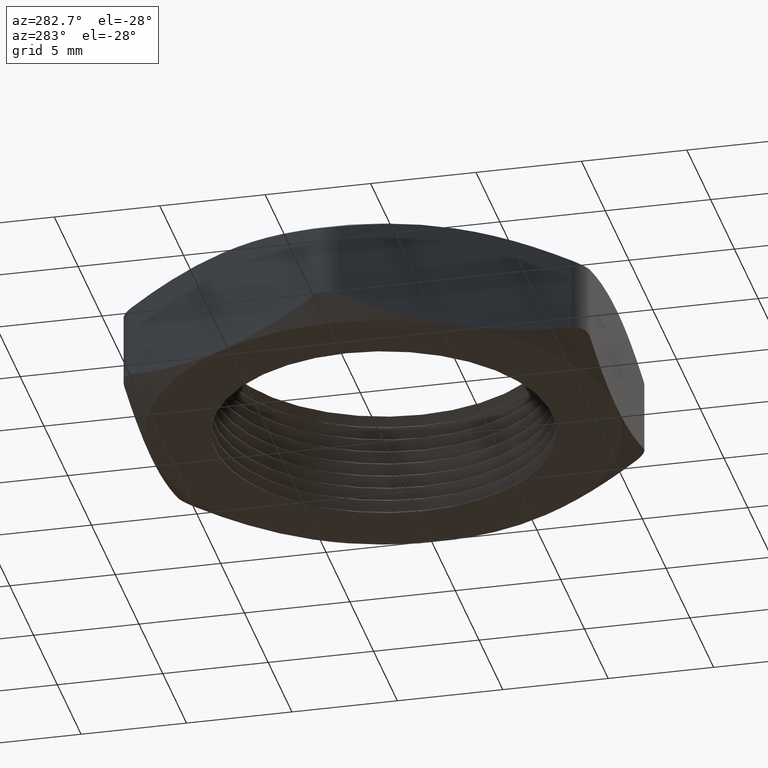
[diagram: clean part render]
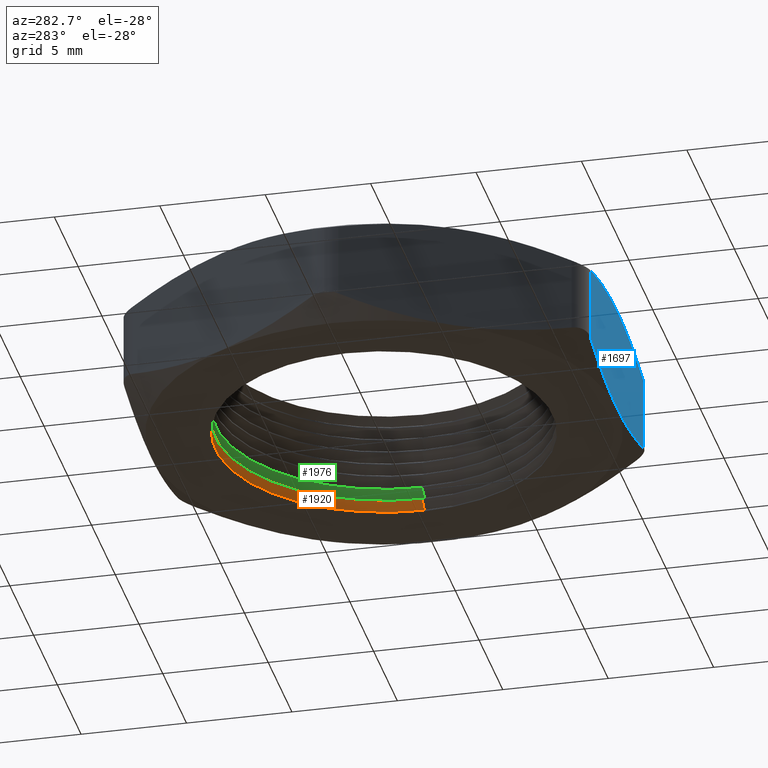
[diagram: same view with three faces highlighted in distinct colors, each labeled with its STEP entity id]
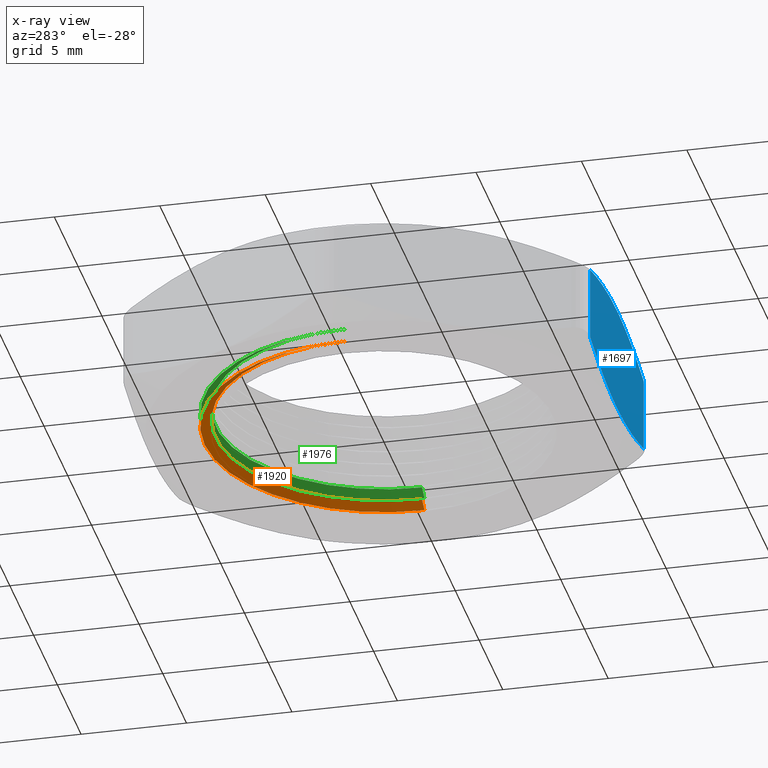
[diagram: x-ray of the same camera — body ghosted, the three highlighted faces saturated]
A machine part, auxiliary view with three faces highlighted in distinct colors.
The next image is the same camera in x-ray (body ghosted, the three faces saturated) — at least one of them is partly hidden behind the body in this view.
Their STEP definitions:

[orange] entity #1920 — the highlighted conical surface has half-angle 60 deg.
#8 = DIRECTION ( 'NONE',  ( 0.0000000000000000000, 0.0000000000000000000, -1.000000000000000000 ) ) ;
#11 = DIRECTION ( 'NONE',  ( -1.000000000000000000, 0.0000000000000000000, 0.0000000000000000000 ) ) ;
#347 = CARTESIAN_POINT ( 'NONE',  ( 0.0000000000000000000, 0.0000000000000000000, 0.01345299461620779400 ) ) ;
#348 = AXIS2_PLACEMENT_3D ( 'NONE', #347, #8, #11 ) ;
#349 = CONICAL_SURFACE ( 'NONE', #348, 0.3349999999999999600, 1.047197551196609000 ) ;
#354 = FACE_OUTER_BOUND ( 'NONE', #1921, .T. ) ;
#410 = CIRCLE ( 'NONE', #426, 0.3349999999999999600 ) ;
#423 = DIRECTION ( 'NONE',  ( 1.000000000000000000, 0.0000000000000000000, 0.0000000000000000000 ) ) ;
#424 = DIRECTION ( 'NONE',  ( 0.0000000000000000000, 0.0000000000000000000, 1.000000000000000000 ) ) ;
#425 = CARTESIAN_POINT ( 'NONE',  ( 0.0000000000000000000, 0.0000000000000000000, 0.01345299461620779400 ) ) ;
#426 = AXIS2_PLACEMENT_3D ( 'NONE', #425, #424, #423 ) ;
#868 = CARTESIAN_POINT ( 'NONE',  ( 0.0000000000000000000, 0.0000000000000000000, 0.02500000000000000500 ) ) ;
#909 = DIRECTION ( 'NONE',  ( 1.000000000000000000, 0.0000000000000000000, 0.0000000000000000000 ) ) ;
#910 = DIRECTION ( 'NONE',  ( 0.0000000000000000000, 0.0000000000000000000, 1.000000000000000000 ) ) ;
#911 = AXIS2_PLACEMENT_3D ( 'NONE', #868, #910, #909 ) ;
#912 = CIRCLE ( 'NONE', #911, 0.3150000000000000000 ) ;
#995 = CARTESIAN_POINT ( 'NONE',  ( 0.3349999999999999600, 4.102566777143632800E-017, 0.01345299461620779400 ) ) ;
#1261 = EDGE_CURVE ( 'NONE', #1380, #1390, #2023, .T. ) ;
#1266 = EDGE_CURVE ( 'NONE', #1381, #1409, #2060, .T. ) ;
#1380 = VERTEX_POINT ( 'NONE', #2269 ) ;
#1381 = VERTEX_POINT ( 'NONE', #2286 ) ;
#1390 = VERTEX_POINT ( 'NONE', #2289 ) ;
#1409 = VERTEX_POINT ( 'NONE', #995 ) ;
#1562 = EDGE_CURVE ( 'NONE', #1381, #1380, #912, .T. ) ;
#1920 = ADVANCED_FACE ( 'NONE', ( #354 ), #349, .F. ) ;
#1921 = EDGE_LOOP ( 'NONE', ( #1922, #2065, #2066, #1960 ) ) ;
#1922 = ORIENTED_EDGE ( 'NONE', *, *, #1266, .F. ) ;
#1960 = ORIENTED_EDGE ( 'NONE', *, *, #1961, .F. ) ;
#1961 = EDGE_CURVE ( 'NONE', #1409, #1390, #410, .T. ) ;
#2020 = DIRECTION ( 'NONE',  ( -0.8660254037844441500, 0.0000000000000000000, -0.4999999999999902300 ) ) ;
#2021 = VECTOR ( 'NONE', #2020, 39.37007874015748100 ) ;
#2022 = CARTESIAN_POINT ( 'NONE',  ( -0.3349999999999999600, 0.0000000000000000000, 0.01345299461620779400 ) ) ;
#2023 = LINE ( 'NONE', #2022, #2021 ) ;
#2057 = DIRECTION ( 'NONE',  ( 0.8660254037844441500, 1.060575238724913900E-016, -0.4999999999999902300 ) ) ;
#2058 = VECTOR ( 'NONE', #2057, 39.37007874015748100 ) ;
#2059 = CARTESIAN_POINT ( 'NONE',  ( 0.3349999999999999600, 4.102566777143632800E-017, 0.01345299461620779400 ) ) ;
#2060 = LINE ( 'NONE', #2059, #2058 ) ;
#2065 = ORIENTED_EDGE ( 'NONE', *, *, #1562, .T. ) ;
#2066 = ORIENTED_EDGE ( 'NONE', *, *, #1261, .T. ) ;
#2269 = CARTESIAN_POINT ( 'NONE',  ( -0.3150000000000000000, 0.0000000000000000000, 0.02500000000000000500 ) ) ;
#2286 = CARTESIAN_POINT ( 'NONE',  ( 0.3150000000000000000, 3.857637417314162700E-017, 0.02500000000000000500 ) ) ;
#2289 = CARTESIAN_POINT ( 'NONE',  ( -0.3349999999999999600, 0.0000000000000000000, 0.01345299461620779400 ) ) ;

[blue] entity #1697 — the highlighted planar face has unit normal (-0, 1, 0).
#7 = FACE_OUTER_BOUND ( 'NONE', #1854, .T. ) ;
#12 = AXIS2_PLACEMENT_3D ( 'NONE', #18, #15, #14 ) ;
#13 = PLANE ( 'NONE',  #12 ) ;
#14 = DIRECTION ( 'NONE',  ( -1.000000000000000000, -1.359683771144138300E-016, 0.0000000000000000000 ) ) ;
#15 = DIRECTION ( 'NONE',  ( -1.359683771144138300E-016, 1.000000000000000000, 0.0000000000000000000 ) ) ;
#18 = CARTESIAN_POINT ( 'NONE',  ( -0.2511473670974874700, -0.4349999999999998900, 0.2000000000000000100 ) ) ;
#25 = B_SPLINE_CURVE_WITH_KNOTS ( 'NONE', 3,
 ( #44, #43, #42, #41, #40, #39 ),
 .UNSPECIFIED., .F., .F.,
 ( 4, 2, 4 ),
 ( 0.01847875069203570500, 0.02132960203524542800, 0.02418045337845514700 ),
 .UNSPECIFIED. ) ;
#26 = CARTESIAN_POINT ( 'NONE',  ( 0.2222798536380059800, -0.4349999999999997800, 0.1691111204119871100 ) ) ;
#27 = DIRECTION ( 'NONE',  ( 0.0000000000000000000, 0.0000000000000000000, 1.000000000000000000 ) ) ;
#28 = VECTOR ( 'NONE', #27, 39.37007874015748100 ) ;
#29 = CARTESIAN_POINT ( 'NONE',  ( 0.2222798536380060100, -0.4349999999999997800, 0.2000000000000000100 ) ) ;
#30 = CARTESIAN_POINT ( 'NONE',  ( 5.914624404477002600E-017, -0.4350000000000000500, 0.0000000000000000000 ) ) ;
#31 = CARTESIAN_POINT ( 'NONE',  ( 0.03753014323917940000, -0.4349999999999998900, -1.376595278057382700E-016 ) ) ;
#32 = CARTESIAN_POINT ( 'NONE',  ( 0.07552621429141961900, -0.4349999999999997800, 0.002912365759522471100 ) ) ;
#33 = CARTESIAN_POINT ( 'NONE',  ( 0.1497328604316976500, -0.4349999999999997800, 0.01365115003455797000 ) ) ;
#34 = CARTESIAN_POINT ( 'NONE',  ( 0.1862242521620562400, -0.4349999999999997200, 0.02141677105221277300 ) ) ;
#35 = CARTESIAN_POINT ( 'NONE',  ( 0.2222798536380059800, -0.4349999999999997800, 0.03088887958801292400 ) ) ;
#36 = LINE ( 'NONE', #29, #28 ) ;
#37 = B_SPLINE_CURVE_WITH_KNOTS ( 'NONE', 3,
 ( #58, #57, #56, #55, #54, #53, #52, #51 ),
 .UNSPECIFIED., .F., .F.,
 ( 4, 2, 2, 4 ),
 ( 0.01277533380509475500, 0.01420118802682999300, 0.01562704224856523200, 0.01847875069203570500 ),
 .UNSPECIFIED. ) ;
#38 = CARTESIAN_POINT ( 'NONE',  ( -0.2222798536380077000, -0.4349999999999998900, 0.1691111204119867000 ) ) ;
#39 = CARTESIAN_POINT ( 'NONE',  ( 0.2222798536380059800, -0.4349999999999997800, 0.1691111204119871100 ) ) ;
#40 = CARTESIAN_POINT ( 'NONE',  ( 0.1862242521620564000, -0.4349999999999998900, 0.1785832289477872800 ) ) ;
#41 = CARTESIAN_POINT ( 'NONE',  ( 0.1497328604316978100, -0.4349999999999997800, 0.1863488499654419900 ) ) ;
#42 = CARTESIAN_POINT ( 'NONE',  ( 0.07552621429141979900, -0.4349999999999997800, 0.1970876342404775900 ) ) ;
#43 = CARTESIAN_POINT ( 'NONE',  ( 0.03753014323917938000, -0.4349999999999997200, 0.2000000000000000900 ) ) ;
#44 = CARTESIAN_POINT ( 'NONE',  ( 5.914624404476998900E-017, -0.4349999999999997800, 0.2000000000000000100 ) ) ;
#45 = CARTESIAN_POINT ( 'NONE',  ( 5.914624404476998900E-017, -0.4349999999999997800, 0.2000000000000000100 ) ) ;
#46 = B_SPLINE_CURVE_WITH_KNOTS ( 'NONE', 3,
 ( #35, #34, #33, #32, #31, #30 ),
 .UNSPECIFIED., .F., .F.,
 ( 4, 2, 4 ),
 ( 0.03248670147795788800, 0.03533643441563486000, 0.03818616735331182400 ),
 .UNSPECIFIED. ) ;
#47 = CARTESIAN_POINT ( 'NONE',  ( 0.2222798536380059800, -0.4349999999999997800, 0.03088887958801292400 ) ) ;
#48 = CARTESIAN_POINT ( 'NONE',  ( 5.914624404477002600E-017, -0.4350000000000000500, 0.0000000000000000000 ) ) ;
#51 = CARTESIAN_POINT ( 'NONE',  ( 5.914624404476998900E-017, -0.4349999999999997800, 0.2000000000000000100 ) ) ;
#52 = CARTESIAN_POINT ( 'NONE',  ( -0.03754142656885312700, -0.4349999999999998900, 0.2000000000000001800 ) ) ;
#53 = CARTESIAN_POINT ( 'NONE',  ( -0.07481306858774536300, -0.4350000000000000000, 0.1971556570366345700 ) ) ;
#54 = CARTESIAN_POINT ( 'NONE',  ( -0.1303676137523879800, -0.4349999999999999400, 0.1891683237292946000 ) ) ;
#55 = CARTESIAN_POINT ( 'NONE',  ( -0.1488276767562097500, -0.4349999999999998900, 0.1858931326932102600 ) ) ;
#56 = CARTESIAN_POINT ( 'NONE',  ( -0.1856455972818110700, -0.4349999999999999400, 0.1782651965368422500 ) ) ;
#57 = CARTESIAN_POINT ( 'NONE',  ( -0.2040460030624152400, -0.4350000000000000000, 0.1739013056982530400 ) ) ;
#58 = CARTESIAN_POINT ( 'NONE',  ( -0.2222798536380077000, -0.4349999999999998900, 0.1691111204119867000 ) ) ;
#1037 = CARTESIAN_POINT ( 'NONE',  ( -0.2222798536380077000, -0.4349999999999998900, 0.03088887958801332000 ) ) ;
#1038 = DIRECTION ( 'NONE',  ( 0.0000000000000000000, 0.0000000000000000000, -1.000000000000000000 ) ) ;
#1039 = VECTOR ( 'NONE', #1038, 39.37007874015748100 ) ;
#1040 = CARTESIAN_POINT ( 'NONE',  ( -0.2222798536380061500, -0.4349999999999998900, 0.2000000000000000100 ) ) ;
#1049 = LINE ( 'NONE', #1040, #1039 ) ;
#1089 = CARTESIAN_POINT ( 'NONE',  ( -0.2222798536380077000, -0.4349999999999998900, 0.03088887958801332000 ) ) ;
#1090 = CARTESIAN_POINT ( 'NONE',  ( -0.2040460030624153300, -0.4349999999999998900, 0.02609869430174703200 ) ) ;
#1091 = CARTESIAN_POINT ( 'NONE',  ( -0.1856455972818111800, -0.4349999999999999400, 0.02173480346315777300 ) ) ;
#1092 = CARTESIAN_POINT ( 'NONE',  ( -0.1488276767562098100, -0.4349999999999999400, 0.01410686730678978100 ) ) ;
#1093 = CARTESIAN_POINT ( 'NONE',  ( -0.1303676137523880100, -0.4349999999999998900, 0.01083167627070547200 ) ) ;
#1094 = CARTESIAN_POINT ( 'NONE',  ( -0.07481306858774536300, -0.4349999999999998900, 0.002844342963365523300 ) ) ;
#1109 = CARTESIAN_POINT ( 'NONE',  ( -0.03754142656885309900, -0.4349999999999999400, -1.380152371799133400E-016 ) ) ;
#1110 = CARTESIAN_POINT ( 'NONE',  ( 5.914624404477002600E-017, -0.4350000000000000500, 0.0000000000000000000 ) ) ;
#1114 = B_SPLINE_CURVE_WITH_KNOTS ( 'NONE', 3,
 ( #1110, #1109, #1094, #1093, #1092, #1091, #1090, #1089 ),
 .UNSPECIFIED., .F., .F.,
 ( 4, 2, 2, 4 ),
 ( 0.03818616735331182400, 0.04103675705500414000, 0.04246205190585029800, 0.04388734675669645600 ),
 .UNSPECIFIED. ) ;
#1635 = ORIENTED_EDGE ( 'NONE', *, *, #1636, .T. ) ;
#1636 = EDGE_CURVE ( 'NONE', #1711, #1637, #1049, .T. ) ;
#1637 = VERTEX_POINT ( 'NONE', #1037 ) ;
#1638 = ORIENTED_EDGE ( 'NONE', *, *, #1639, .F. ) ;
#1639 = EDGE_CURVE ( 'NONE', #1702, #1637, #1114, .T. ) ;
#1697 = ADVANCED_FACE ( 'NONE', ( #7 ), #13, .F. ) ;
#1698 = ORIENTED_EDGE ( 'NONE', *, *, #1700, .F. ) ;
#1700 = EDGE_CURVE ( 'NONE', #1701, #1702, #46, .T. ) ;
#1701 = VERTEX_POINT ( 'NONE', #47 ) ;
#1702 = VERTEX_POINT ( 'NONE', #48 ) ;
#1703 = ORIENTED_EDGE ( 'NONE', *, *, #1704, .T. ) ;
#1704 = EDGE_CURVE ( 'NONE', #1701, #1705, #36, .T. ) ;
#1705 = VERTEX_POINT ( 'NONE', #26 ) ;
#1706 = ORIENTED_EDGE ( 'NONE', *, *, #1707, .F. ) ;
#1707 = EDGE_CURVE ( 'NONE', #1708, #1705, #25, .T. ) ;
#1708 = VERTEX_POINT ( 'NONE', #45 ) ;
#1709 = ORIENTED_EDGE ( 'NONE', *, *, #1710, .F. ) ;
#1710 = EDGE_CURVE ( 'NONE', #1711, #1708, #37, .T. ) ;
#1711 = VERTEX_POINT ( 'NONE', #38 ) ;
#1854 = EDGE_LOOP ( 'NONE', ( #1698, #1703, #1706, #1709, #1635, #1638 ) ) ;

[green] entity #1976 — the highlighted conical surface has half-angle 60 deg.
#431 = DIRECTION ( 'NONE',  ( 1.000000000000000000, 0.0000000000000000000, 0.0000000000000000000 ) ) ;
#432 = DIRECTION ( 'NONE',  ( 0.0000000000000000000, 0.0000000000000000000, 1.000000000000000000 ) ) ;
#433 = CARTESIAN_POINT ( 'NONE',  ( 0.0000000000000000000, 0.0000000000000000000, 0.03845299461620780400 ) ) ;
#434 = AXIS2_PLACEMENT_3D ( 'NONE', #433, #432, #431 ) ;
#435 = DIRECTION ( 'NONE',  ( -1.000000000000000000, 0.0000000000000000000, 0.0000000000000000000 ) ) ;
#489 = DIRECTION ( 'NONE',  ( 0.0000000000000000000, 0.0000000000000000000, -1.000000000000000000 ) ) ;
#490 = CARTESIAN_POINT ( 'NONE',  ( 0.0000000000000000000, 0.0000000000000000000, 0.03845299461620780400 ) ) ;
#491 = AXIS2_PLACEMENT_3D ( 'NONE', #490, #489, #435 ) ;
#492 = CONICAL_SURFACE ( 'NONE', #491, 0.3349999999999999600, 1.047197551196609000 ) ;
#493 = CIRCLE ( 'NONE', #434, 0.3349999999999999600 ) ;
#587 = FACE_OUTER_BOUND ( 'NONE', #1977, .T. ) ;
#727 = DIRECTION ( 'NONE',  ( 0.0000000000000000000, 0.0000000000000000000, 1.000000000000000000 ) ) ;
#728 = AXIS2_PLACEMENT_3D ( 'NONE', #743, #727, #738 ) ;
#729 = CIRCLE ( 'NONE', #728, 0.3150000000000000000 ) ;
#738 = DIRECTION ( 'NONE',  ( 1.000000000000000000, 0.0000000000000000000, 0.0000000000000000000 ) ) ;
#743 = CARTESIAN_POINT ( 'NONE',  ( 0.0000000000000000000, 0.0000000000000000000, 0.05000000000000001000 ) ) ;
#1247 = VERTEX_POINT ( 'NONE', #2049 ) ;
#1271 = VERTEX_POINT ( 'NONE', #1930 ) ;
#1272 = EDGE_CURVE ( 'NONE', #1328, #1247, #1929, .T. ) ;
#1277 = EDGE_CURVE ( 'NONE', #1271, #1331, #1944, .T. ) ;
#1328 = VERTEX_POINT ( 'NONE', #2142 ) ;
#1331 = VERTEX_POINT ( 'NONE', #2136 ) ;
#1507 = EDGE_CURVE ( 'NONE', #1271, #1328, #729, .T. ) ;
#1926 = DIRECTION ( 'NONE',  ( -0.8660254037844441500, 0.0000000000000000000, -0.4999999999999902300 ) ) ;
#1927 = VECTOR ( 'NONE', #1926, 39.37007874015748100 ) ;
#1928 = CARTESIAN_POINT ( 'NONE',  ( -0.3349999999999999600, 0.0000000000000000000, 0.03845299461620780400 ) ) ;
#1929 = LINE ( 'NONE', #1928, #1927 ) ;
#1930 = CARTESIAN_POINT ( 'NONE',  ( 0.3150000000000000000, 3.857637417314162700E-017, 0.05000000000000001000 ) ) ;
#1938 = DIRECTION ( 'NONE',  ( 0.8660254037844441500, 1.060575238724913900E-016, -0.4999999999999902300 ) ) ;
#1939 = VECTOR ( 'NONE', #1938, 39.37007874015748100 ) ;
#1940 = CARTESIAN_POINT ( 'NONE',  ( 0.3349999999999999600, 4.102566777143632800E-017, 0.03845299461620780400 ) ) ;
#1944 = LINE ( 'NONE', #1940, #1939 ) ;
#1976 = ADVANCED_FACE ( 'NONE', ( #587 ), #492, .F. ) ;
#1977 = EDGE_LOOP ( 'NONE', ( #1978, #1979, #1980, #1981 ) ) ;
#1978 = ORIENTED_EDGE ( 'NONE', *, *, #1277, .F. ) ;
#1979 = ORIENTED_EDGE ( 'NONE', *, *, #1507, .T. ) ;
#1980 = ORIENTED_EDGE ( 'NONE', *, *, #1272, .T. ) ;
#1981 = ORIENTED_EDGE ( 'NONE', *, *, #1982, .F. ) ;
#1982 = EDGE_CURVE ( 'NONE', #1331, #1247, #493, .T. ) ;
#2049 = CARTESIAN_POINT ( 'NONE',  ( -0.3349999999999999600, 0.0000000000000000000, 0.03845299461620780400 ) ) ;
#2136 = CARTESIAN_POINT ( 'NONE',  ( 0.3349999999999999600, 4.102566777143632800E-017, 0.03845299461620780400 ) ) ;
#2142 = CARTESIAN_POINT ( 'NONE',  ( -0.3150000000000000000, 0.0000000000000000000, 0.05000000000000001000 ) ) ;